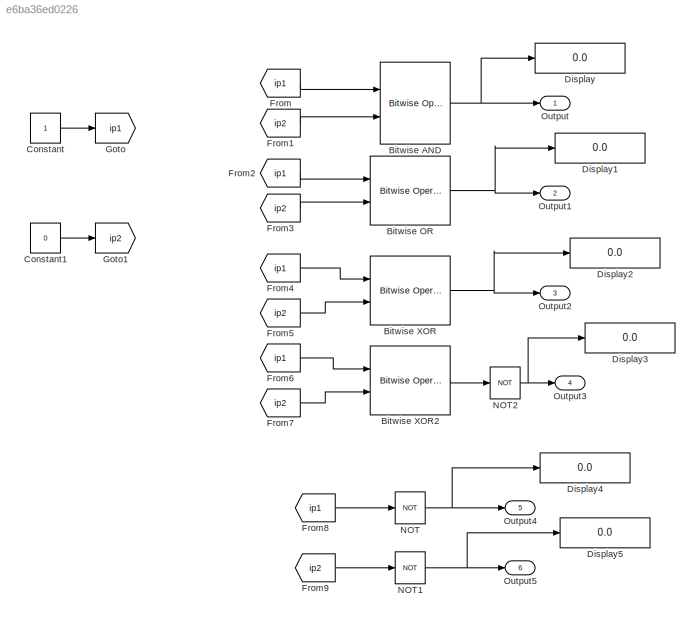
MODEL slx_e6ba36ed0226
KIND model
CONFIG AbsTol = auto
CONFIG EnableMultiTasking = off
CONFIG FixedStep = auto
CONFIG MaxStep = auto
CONFIG MinStep = auto
CONFIG RelTol = 1e-3
CONFIG SampleTimeConstraint = Unconstrained
CONFIG SolverName = VariableStepAuto
CONFIG StartTime = 0.0
CONFIG StopTime = 10.0
BLOCK [Reference] Bitwise AND  REF=simulink/Logic and Bit
Operations/Bitwise
Operator
  Ports = [2, 1]
  SourceBlock = simulink/Logic and Bit\nOperations/Bitwise\nOperator
  SourceProductBaseCode = SL
  SourceType = Bitwise Operator
BLOCK [Reference] Bitwise OR  REF=simulink/Logic and Bit
Operations/Bitwise
Operator
  Ports = [2, 1]
  SourceBlock = simulink/Logic and Bit\nOperations/Bitwise\nOperator
  SourceProductBaseCode = SL
  SourceType = Bitwise Operator
BLOCK [Reference] Bitwise XOR  REF=simulink/Logic and Bit
Operations/Bitwise
Operator
  Ports = [2, 1]
  SourceBlock = simulink/Logic and Bit\nOperations/Bitwise\nOperator
  SourceProductBaseCode = SL
  SourceType = Bitwise Operator
BLOCK [Reference] Bitwise XOR2  REF=simulink/Logic and Bit
Operations/Bitwise
Operator
  Ports = [2, 1]
  SourceBlock = simulink/Logic and Bit\nOperations/Bitwise\nOperator
  SourceProductBaseCode = SL
  SourceType = Bitwise Operator
BLOCK [Constant] Constant
  OutDataTypeStr = uint8
BLOCK [Constant] Constant1
  OutDataTypeStr = uint8
  Value = 0
BLOCK [Display] Display
  Decimation = 1
  Ports = [1]
BLOCK [Display] Display1
  Decimation = 1
  Ports = [1]
BLOCK [Display] Display2
  Decimation = 1
  Ports = [1]
BLOCK [Display] Display3
  Decimation = 1
  Ports = [1]
BLOCK [Display] Display4
  Decimation = 1
  Ports = [1]
BLOCK [Display] Display5
  Decimation = 1
  Ports = [1]
BLOCK [From] From
  GotoTag = ip1
BLOCK [From] From1
  GotoTag = ip2
BLOCK [From] From2
  GotoTag = ip1
BLOCK [From] From3
  GotoTag = ip2
BLOCK [From] From4
  GotoTag = ip1
BLOCK [From] From5
  GotoTag = ip2
BLOCK [From] From6
  GotoTag = ip1
BLOCK [From] From7
  GotoTag = ip2
BLOCK [From] From8
  GotoTag = ip1
BLOCK [From] From9
  GotoTag = ip2
BLOCK [Goto] Goto
  GotoTag = ip1
BLOCK [Goto] Goto1
  GotoTag = ip2
BLOCK [Logic] NOT
  AllPortsSameDT = off
  IconShape = distinctive
  Operator = NOT
  OutDataTypeStr = boolean
  Ports = [1, 1]
BLOCK [Logic] NOT1
  AllPortsSameDT = off
  IconShape = distinctive
  Operator = NOT
  OutDataTypeStr = boolean
  Ports = [1, 1]
BLOCK [Logic] NOT2
  AllPortsSameDT = off
  IconShape = distinctive
  Operator = NOT
  OutDataTypeStr = boolean
  Ports = [1, 1]
BLOCK [Outport] Output
BLOCK [Outport] Output1
  Port = 2
BLOCK [Outport] Output2
  Port = 3
BLOCK [Outport] Output3
  Port = 4
BLOCK [Outport] Output4
  Port = 5
BLOCK [Outport] Output5
  Port = 6
NET Bitwise AND:1 -> Display:1, Output:1
NET Bitwise OR:1 -> Display1:1, Output1:1
LINE Bitwise XOR2:1 -> NOT2:1
NET Bitwise XOR:1 -> Display2:1, Output2:1
LINE Constant1:1 -> Goto1:1
LINE Constant:1 -> Goto:1
LINE From1:1 -> Bitwise AND:2
LINE From2:1 -> Bitwise OR:1
LINE From3:1 -> Bitwise OR:2
LINE From4:1 -> Bitwise XOR:1
LINE From5:1 -> Bitwise XOR:2
LINE From6:1 -> Bitwise XOR2:1
LINE From7:1 -> Bitwise XOR2:2
LINE From8:1 -> NOT:1
LINE From9:1 -> NOT1:1
LINE From:1 -> Bitwise AND:1
NET NOT1:1 -> Display5:1, Output5:1
NET NOT2:1 -> Display3:1, Output3:1
NET NOT:1 -> Display4:1, Output4:1
note: NET lines group one-source signal fan-out (src -> all destinations, sorted); 1:1 wires keep LINE
